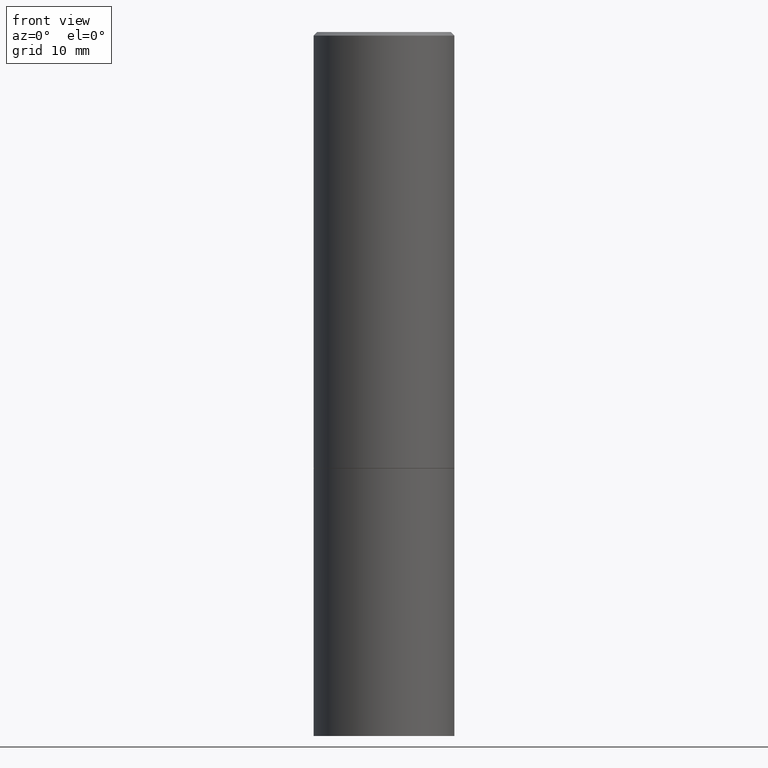
[diagram: clean part render]
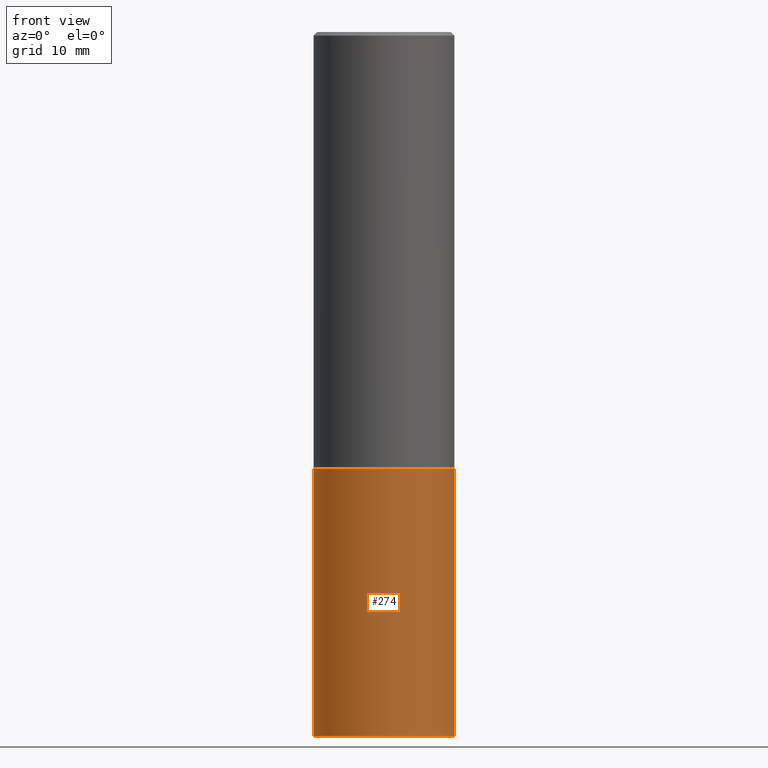
[diagram: same view with one face highlighted and labeled with its STEP entity id]
A machine part, front view. The second image highlights one B-rep face of the part: STEP entity #274.
In plain terms, the highlighted cylindrical surface (partial cylindrical patch) has radius 10 mm, axis along (-0, 0, 1).
Its self-contained STEP definition (entity closure, byte-faithful):
#17 = FACE_OUTER_BOUND ( 'NONE', #128, .T. ) ;
#19 = ORIENTED_EDGE ( 'NONE', *, *, #119, .T. ) ;
#44 = VERTEX_POINT ( 'NONE', #240 ) ;
#62 = AXIS2_PLACEMENT_3D ( 'NONE', #72, #178, #292 ) ;
#72 = CARTESIAN_POINT ( 'NONE',  ( 9.627810689950883669E-29, -1.374596203102546341E-14, -3.937000000000000277 ) ) ;
#101 = CARTESIAN_POINT ( 'NONE',  ( -0.3937000000000000499, 2.797406750687514786E-15, -1.936584745033356735E-29 ) ) ;
#109 = VERTEX_POINT ( 'NONE', #352 ) ;
#116 = DIRECTION ( 'NONE',  ( 1.000000000000000000, -6.982962677686267499E-15, 0.000000000000000000 ) ) ;
#119 = EDGE_CURVE ( 'NONE', #142, #44, #160, .T. ) ;
#122 = VECTOR ( 'NONE', #210, 39.37007874015748143 ) ;
#126 = CARTESIAN_POINT ( 'NONE',  ( -0.3937000000000000499, -8.336752664816334981E-15, -3.937000000000000277 ) ) ;
#128 = EDGE_LOOP ( 'NONE', ( #275, #152, #19, #304 ) ) ;
#130 = VERTEX_POINT ( 'NONE', #126 ) ;
#142 = VERTEX_POINT ( 'NONE', #237 ) ;
#152 = ORIENTED_EDGE ( 'NONE', *, *, #253, .T. ) ;
#158 = DIRECTION ( 'NONE',  ( -2.445468806185136877E-29, 3.491481338843145188E-15, 1.000000000000000000 ) ) ;
#160 = LINE ( 'NONE', #318, #122 ) ;
#178 = DIRECTION ( 'NONE',  ( -2.445468806185136597E-29, 3.491481338843145583E-15, 1.000000000000000000 ) ) ;
#182 = VECTOR ( 'NONE', #158, 39.37007874015748143 ) ;
#210 = DIRECTION ( 'NONE',  ( -2.445468806185136877E-29, 3.491481338843145188E-15, 1.000000000000000000 ) ) ;
#213 = CIRCLE ( 'NONE', #62, 0.3937000000000000499 ) ;
#233 = EDGE_CURVE ( 'NONE', #130, #109, #235, .T. ) ;
#235 = LINE ( 'NONE', #101, #182 ) ;
#237 = CARTESIAN_POINT ( 'NONE',  ( 0.3937000000000000499, -1.649515443723054663E-14, -3.937000000000000277 ) ) ;
#240 = CARTESIAN_POINT ( 'NONE',  ( 0.3937000000000000499, -1.127154920618731776E-14, -2.440900000000000070 ) ) ;
#241 = CIRCLE ( 'NONE', #265, 0.3937000000000000499 ) ;
#250 = CARTESIAN_POINT ( 'NONE',  ( 5.969144809017300159E-29, -8.522356799982234543E-15, -2.440900000000000070 ) ) ;
#253 = EDGE_CURVE ( 'NONE', #130, #142, #213, .T. ) ;
#265 = AXIS2_PLACEMENT_3D ( 'NONE', #250, #361, #116 ) ;
#266 = DIRECTION ( 'NONE',  ( -2.445468806185136597E-29, 3.491481338843145583E-15, 1.000000000000000000 ) ) ;
#268 = DIRECTION ( 'NONE',  ( 1.000000000000000000, -6.982962677686265922E-15, 4.876176775795935793E-29 ) ) ;
#274 = ADVANCED_FACE ( 'NONE', ( #17 ), #323, .T. ) ;
#275 = ORIENTED_EDGE ( 'NONE', *, *, #233, .F. ) ;
#292 = DIRECTION ( 'NONE',  ( 1.000000000000000000, -6.982962677686267499E-15, 0.000000000000000000 ) ) ;
#294 = CARTESIAN_POINT ( 'NONE',  ( 0.000000000000000000, 0.000000000000000000, 0.000000000000000000 ) ) ;
#304 = ORIENTED_EDGE ( 'NONE', *, *, #315, .F. ) ;
#315 = EDGE_CURVE ( 'NONE', #109, #44, #241, .T. ) ;
#318 = CARTESIAN_POINT ( 'NONE',  ( 0.3937000000000000499, -2.749192406205083217E-15, 1.919750796630860172E-29 ) ) ;
#323 = CYLINDRICAL_SURFACE ( 'NONE', #363, 0.3937000000000000499 ) ;
#352 = CARTESIAN_POINT ( 'NONE',  ( -0.3937000000000000499, -8.336752664816334981E-15, -2.440900000000000070 ) ) ;
#361 = DIRECTION ( 'NONE',  ( -2.445468806185136597E-29, 3.491481338843145583E-15, 1.000000000000000000 ) ) ;
#363 = AXIS2_PLACEMENT_3D ( 'NONE', #294, #266, #268 ) ;